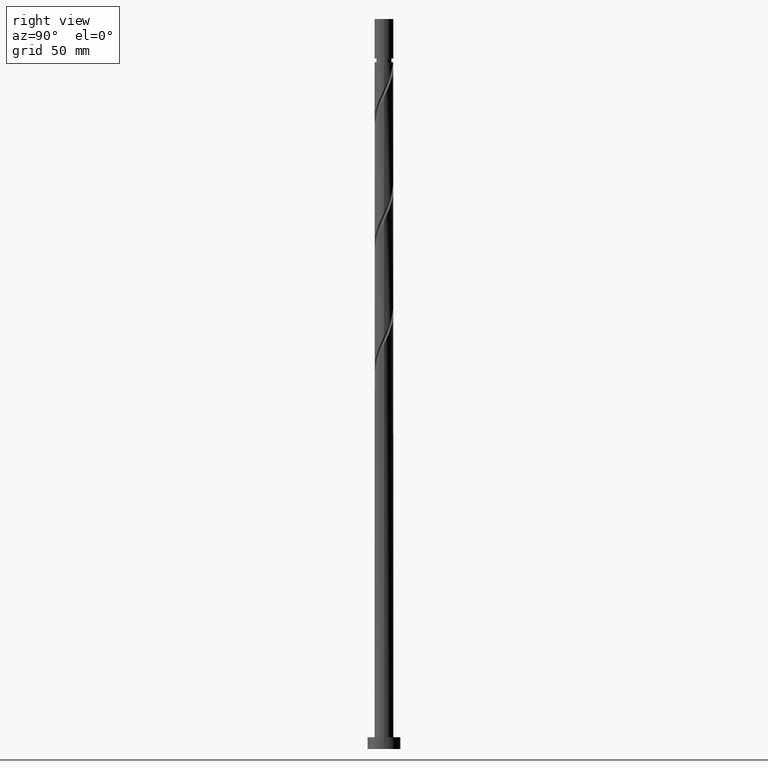
[diagram: clean part render]
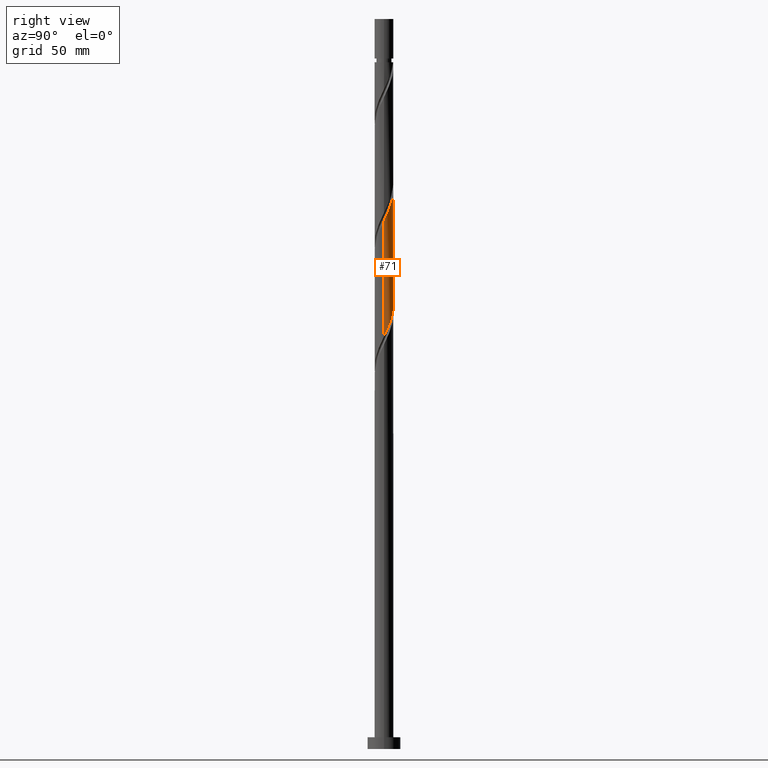
[diagram: same view with one face highlighted and labeled with its STEP entity id]
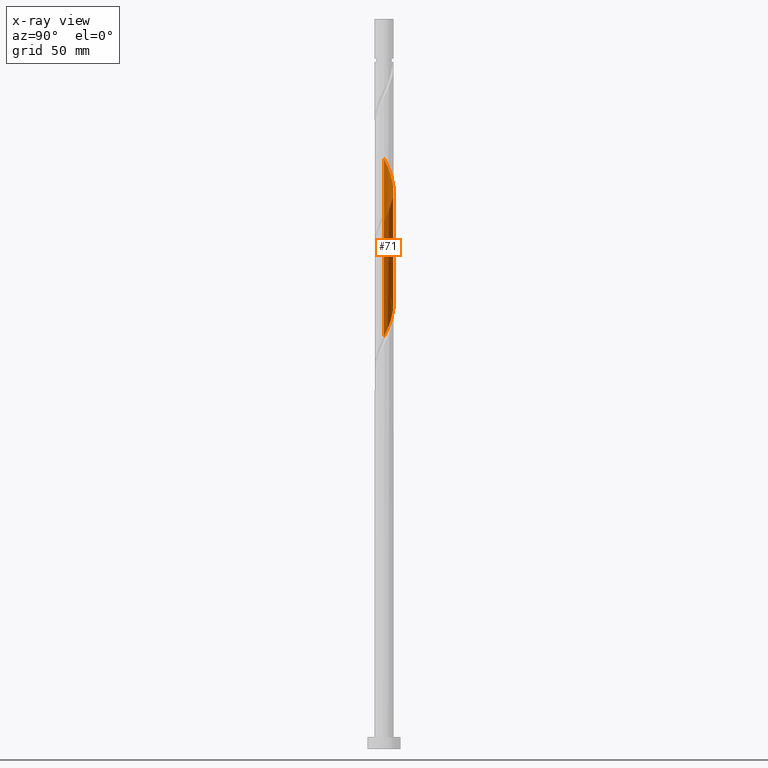
[diagram: x-ray of the same camera — body ghosted, the highlighted face saturated]
A machine part, right view. The second image highlights one B-rep face of the part: STEP entity #71.
The next image is the same camera in x-ray: the body ghosted, the highlighted face saturated — about 0% of this face is hidden behind the body in this view.
In plain terms, the highlighted cylindrical surface (edge-blend (fillet) strip) has radius 4 mm, axis along (-0, -0, -1).
Its self-contained STEP definition (entity closure, byte-faithful):
#15 = CARTESIAN_POINT ( 'NONE',  ( -3.355809096668281200, 2.222986362731496079, 245.7231802537389740 ) ) ;
#30 = VERTEX_POINT ( 'NONE', #113 ) ;
#40 = EDGE_CURVE ( 'NONE', #176, #1102, #1374, .T. ) ;
#71 = ADVANCED_FACE ( 'NONE', ( #294 ), #366, .T. ) ;
#113 = CARTESIAN_POINT ( 'NONE',  ( 4.000000000000005329, 6.119567143825683200E-16, 224.3611631758329281 ) ) ;
#129 = CARTESIAN_POINT ( 'NONE',  ( 3.999999999999999112, 0.04813158866555920096, 175.3105600198700813 ) ) ;
#136 = CARTESIAN_POINT ( 'NONE',  ( -3.066410025678347306, 2.568487795263850959, 244.7856802537390308 ) ) ;
#137 = CARTESIAN_POINT ( 'NONE',  ( 3.987997157791136171, 0.5468105079655612988, 176.3481802537390024 ) ) ;
#163 = CARTESIAN_POINT ( 'NONE',  ( -3.998841842776565958, 0.09624924134435045020, 250.4106802537389171 ) ) ;
#172 = CARTESIAN_POINT ( 'NONE',  ( 3.920000000000005258, 0.7959899496852977929, 226.0356802537390593 ) ) ;
#176 = VERTEX_POINT ( 'NONE', #955 ) ;
#256 = CARTESIAN_POINT ( 'NONE',  ( -4.000000000000005329, 4.955356809146651200E-15, 250.6111631758328144 ) ) ;
#267 = CARTESIAN_POINT ( 'NONE',  ( -3.919999999999999041, 0.7959899496852982370, 199.7856802537390024 ) ) ;
#275 = VECTOR ( 'NONE', #1395, 1000.000000000000000 ) ;
#283 = CARTESIAN_POINT ( 'NONE',  ( 0.9836620935111639596, 3.877165057846941654, 235.4106802537390024 ) ) ;
#292 = CARTESIAN_POINT ( 'NONE',  ( 2.222986362731496524, 3.355809096668280755, 232.5981802537390024 ) ) ;
#294 = FACE_OUTER_BOUND ( 'NONE', #1459, .T. ) ;
#366 = CYLINDRICAL_SURFACE ( 'NONE', #1519, 4.000000000000000000 ) ;
#389 =( BOUNDED_CURVE ( )  B_SPLINE_CURVE ( 2, ( #1324, #428, #172, #891, #1905, #1787, #1780, #883, #1048, #292, #576, #1178, #283, #1798, #1762, #1358, #1649, #1032, #922, #733, #1475, #1621, #136, #15, #900, #1332, #1914, #1205, #163, #1925, #1659 ),
 .UNSPECIFIED., .F., .T. ) 
 B_SPLINE_CURVE_WITH_KNOTS ( ( 3, 2, 2, 2, 2, 2, 2, 2, 2, 2, 2, 2, 2, 2, 2, 3 ),
 ( 0.4295303401299219170, 0.4375000000000000000, 0.4464285714285713969, 0.4553571428571429047, 0.4642857142857143016, 0.4732142857142856984, 0.4821428571428570953, 0.4910714285714286031, 0.5000000000000000000, 0.5089285714285713969, 0.5178571428571427937, 0.5267857142857143016, 0.5357142857142856984, 0.5446428571428572063, 0.5535714285714286031, 0.5545303401299219725 ),
 .UNSPECIFIED. ) 
 CURVE ( )  GEOMETRIC_REPRESENTATION_ITEM ( )  RATIONAL_B_SPLINE_CURVE ( ( 0.9079949616362097409, 0.9039886423360724566, 0.9090909090909393697, 0.9033747362666143532, 0.9090909090909393697, 0.9033747362666143532, 0.9090909090909393697, 0.9033747362666143532, 0.9090909090909393697, 0.9033747362666143532, 0.9090909090909393697, 0.9033747362666143532, 0.9090909090909393697, 0.9033747362666143532, 0.9090909090909393697, 0.9033747362666143532, 0.9090909090909393697, 0.9033747362666143532, 0.9090909090909393697, 0.9033747362666143532, 0.9090909090909393697, 0.9033747362666143532, 0.9090909090909393697, 0.9033747362666143532, 0.9090909090909393697, 0.9033747362666143532, 0.9090909090909393697, 0.9033747362666143532, 0.9090909090909393697, 0.9084770030214812664, 0.9079949616362096299 ) ) 
 REPRESENTATION_ITEM ( '' )  );
#415 = CARTESIAN_POINT ( 'NONE',  ( -0.9836620935111607400, 3.877165057846935436, 190.4106802537390024 ) ) ;
#421 = EDGE_CURVE ( 'NONE', #30, #906, #389, .T. ) ;
#427 = CARTESIAN_POINT ( 'NONE',  ( 3.999999999999998224, -2.634399026549366747E-15, 175.2101973316449914 ) ) ;
#428 = CARTESIAN_POINT ( 'NONE',  ( 4.000000000000007994, 0.4020151261036780665, 225.1994342547965289 ) ) ;
#439 = CARTESIAN_POINT ( 'NONE',  ( 3.766332957902735590, 1.420513679056758516, 178.2231802537389171 ) ) ;
#562 = CARTESIAN_POINT ( 'NONE',  ( -3.458872505219855675, 2.058961887652576817, 196.9731802537390024 ) ) ;
#571 = CARTESIAN_POINT ( 'NONE',  ( -0.09624924134434953427, 3.998841842776559741, 188.5356802537389740 ) ) ;
#576 = CARTESIAN_POINT ( 'NONE',  ( 1.821750020894129518, 3.561071027285510837, 233.5356802537389456 ) ) ;
#587 = CARTESIAN_POINT ( 'NONE',  ( 1.237667874093734133, 3.830313472238014771, 185.7231802537389740 ) ) ;
#655 = EDGE_CURVE ( 'NONE', #906, #176, #931, .T. ) ;
#707 = CARTESIAN_POINT ( 'NONE',  ( -2.568487795263846518, 3.066410025678343754, 194.1606802537389456 ) ) ;
#718 = CARTESIAN_POINT ( 'NONE',  ( -2.913989227796199621, 2.777010954688412081, 195.0981802537389456 ) ) ;
#733 = CARTESIAN_POINT ( 'NONE',  ( -2.058961887652579037, 3.458872505219861004, 241.9731802537390024 ) ) ;
#734 = CARTESIAN_POINT ( 'NONE',  ( 3.999999999999998224, -2.634399026549366747E-15, 175.2101973316449914 ) ) ;
#866 = CARTESIAN_POINT ( 'NONE',  ( -3.830313472238014771, 1.237667874093733245, 198.8481802537389456 ) ) ;
#875 = CARTESIAN_POINT ( 'NONE',  ( 3.066410025678344198, 2.568487795263845186, 181.0356802537389456 ) ) ;
#883 = CARTESIAN_POINT ( 'NONE',  ( 2.913989227796204950, 2.777010954688415634, 230.7231802537389456 ) ) ;
#884 = CARTESIAN_POINT ( 'NONE',  ( -3.999999999999998224, 0.4020151261036926105, 200.6219262526814191 ) ) ;
#885 = LINE ( 'NONE', #1174, #1794 ) ;
#891 = CARTESIAN_POINT ( 'NONE',  ( 3.830313472238021433, 1.237667874093733911, 226.9731802537388887 ) ) ;
#900 = CARTESIAN_POINT ( 'NONE',  ( -3.561071027285510837, 1.821750020894129074, 246.6606802537390593 ) ) ;
#906 = VERTEX_POINT ( 'NONE', #256 ) ;
#922 = CARTESIAN_POINT ( 'NONE',  ( -1.648314880873156918, 3.644592988728940774, 241.0356802537389740 ) ) ;
#931 = LINE ( 'NONE', #1226, #275 ) ;
#955 = CARTESIAN_POINT ( 'NONE',  ( -3.999999999999999112, 1.334364152824438586E-14, 201.4601973316449630 ) ) ;
#1025 = CARTESIAN_POINT ( 'NONE',  ( 3.877165057846936769, 0.9836620935111599628, 177.2856802537389456 ) ) ;
#1032 = CARTESIAN_POINT ( 'NONE',  ( -1.237667874093734799, 3.830313472238021433, 240.0981802537390024 ) ) ;
#1048 = CARTESIAN_POINT ( 'NONE',  ( 2.568487795263851847, 3.066410025678347306, 231.6606802537389740 ) ) ;
#1102 = VERTEX_POINT ( 'NONE', #427 ) ;
#1173 = CARTESIAN_POINT ( 'NONE',  ( 0.7959899496852991252, 3.919999999999999041, 186.6606802537389740 ) ) ;
#1174 = CARTESIAN_POINT ( 'NONE',  ( 4.000000000000000000, 4.898587196589412829E-16, 310.0000000000000000 ) ) ;
#1178 = CARTESIAN_POINT ( 'NONE',  ( 1.420513679056762957, 3.766332957902740475, 234.4731802537389456 ) ) ;
#1190 = CARTESIAN_POINT ( 'NONE',  ( -2.222986362731492527, 3.355809096668277203, 193.2231802537389740 ) ) ;
#1205 = CARTESIAN_POINT ( 'NONE',  ( -3.987997157791141500, 0.5468105079655638523, 249.4731802537390024 ) ) ;
#1226 = CARTESIAN_POINT ( 'NONE',  ( -4.000000000000000000, 0.000000000000000000, 310.0000000000000000 ) ) ;
#1317 = CARTESIAN_POINT ( 'NONE',  ( -1.420513679056759626, 3.766332957902735590, 191.3481802537389740 ) ) ;
#1324 = CARTESIAN_POINT ( 'NONE',  ( 4.000000000000005329, 6.119567143825683200E-16, 224.3611631758329281 ) ) ;
#1325 = CARTESIAN_POINT ( 'NONE',  ( 3.355809096668277203, 2.222986362731491639, 180.0981802537389171 ) ) ;
#1332 = CARTESIAN_POINT ( 'NONE',  ( -3.766332957902740475, 1.420513679056762291, 247.5981802537389740 ) ) ;
#1333 = CARTESIAN_POINT ( 'NONE',  ( 0.3543120252768630074, 4.009686527761982866, 187.5981802537389456 ) ) ;
#1358 = CARTESIAN_POINT ( 'NONE',  ( -0.3543120252768621192, 4.009686527761989971, 238.2231802537388887 ) ) ;
#1361 = ORIENTED_EDGE ( 'NONE', *, *, #421, .F. ) ;
#1374 =( BOUNDED_CURVE ( )  B_SPLINE_CURVE ( 2, ( #1622, #884, #267, #866, #1632, #562, #1607, #718, #707, #1190, #1749, #1317, #415, #1898, #571, #1333, #1173, #587, #1756, #1915, #1774, #1763, #875, #1325, #1476, #439, #1025, #137, #1614, #129, #734 ),
 .UNSPECIFIED., .F., .T. ) 
 B_SPLINE_CURVE_WITH_KNOTS ( ( 3, 2, 2, 2, 2, 2, 2, 2, 2, 2, 2, 2, 2, 2, 2, 3 ),
 ( 0.6795303401299221946, 0.6875000000000000000, 0.6964285714285713969, 0.7053571428571429047, 0.7142857142857143016, 0.7232142857142856984, 0.7321428571428570953, 0.7410714285714286031, 0.7500000000000000000, 0.7589285714285713969, 0.7678571428571429047, 0.7767857142857143016, 0.7857142857142856984, 0.7946428571428570953, 0.8035714285714286031, 0.8045303401299220836 ),
 .UNSPECIFIED. ) 
 CURVE ( )  GEOMETRIC_REPRESENTATION_ITEM ( )  RATIONAL_B_SPLINE_CURVE ( ( 0.9079949616362034126, 0.9039886423360666834, 0.9090909090909334855, 0.9033747362666083580, 0.9090909090909334855, 0.9033747362666083580, 0.9090909090909334855, 0.9033747362666083580, 0.9090909090909334855, 0.9033747362666083580, 0.9090909090909334855, 0.9033747362666083580, 0.9090909090909334855, 0.9033747362666083580, 0.9090909090909334855, 0.9033747362666083580, 0.9090909090909334855, 0.9033747362666083580, 0.9090909090909334855, 0.9033747362666083580, 0.9090909090909334855, 0.9033747362666083580, 0.9090909090909334855, 0.9033747362666083580, 0.9090909090909334855, 0.9033747362666083580, 0.9090909090909334855, 0.9033747362666083580, 0.9090909090909334855, 0.9084770030214752712, 0.9079949616362036346 ) ) 
 REPRESENTATION_ITEM ( '' )  );
#1375 = ORIENTED_EDGE ( 'NONE', *, *, #40, .F. ) ;
#1378 = DIRECTION ( 'NONE',  ( -1.000000000000000000, 0.000000000000000000, 0.000000000000000000 ) ) ;
#1395 = DIRECTION ( 'NONE',  ( -0.000000000000000000, -0.000000000000000000, -1.000000000000000000 ) ) ;
#1438 = ORIENTED_EDGE ( 'NONE', *, *, #1849, .T. ) ;
#1459 = EDGE_LOOP ( 'NONE', ( #1361, #1438, #1375, #1675 ) ) ;
#1475 = CARTESIAN_POINT ( 'NONE',  ( -2.417986421170497557, 3.186430866508032977, 242.9106802537390024 ) ) ;
#1476 = CARTESIAN_POINT ( 'NONE',  ( 3.561071027285505952, 1.821750020894124855, 179.1606802537389740 ) ) ;
#1519 = AXIS2_PLACEMENT_3D ( 'NONE', #1691, #1841, #1378 ) ;
#1607 = CARTESIAN_POINT ( 'NONE',  ( -3.186430866508028092, 2.417986421170494449, 196.0356802537389740 ) ) ;
#1614 = CARTESIAN_POINT ( 'NONE',  ( 3.998841842776559741, 0.09624924134434886813, 175.4106802537389456 ) ) ;
#1621 = CARTESIAN_POINT ( 'NONE',  ( -2.777010954688416522, 2.913989227796204950, 243.8481802537389456 ) ) ;
#1622 = CARTESIAN_POINT ( 'NONE',  ( -3.999999999999999112, 1.334364152824438586E-14, 201.4601973316449630 ) ) ;
#1632 = CARTESIAN_POINT ( 'NONE',  ( -3.644592988728935445, 1.648314880873155142, 197.9106802537389740 ) ) ;
#1649 = CARTESIAN_POINT ( 'NONE',  ( -0.7959899496852976819, 3.920000000000005258, 239.1606802537390024 ) ) ;
#1659 = CARTESIAN_POINT ( 'NONE',  ( -4.000000000000005329, 4.955356809146651200E-15, 250.6111631758328144 ) ) ;
#1675 = ORIENTED_EDGE ( 'NONE', *, *, #655, .F. ) ;
#1691 = CARTESIAN_POINT ( 'NONE',  ( 0.000000000000000000, 0.000000000000000000, 310.0000000000000000 ) ) ;
#1749 = CARTESIAN_POINT ( 'NONE',  ( -1.821750020894125521, 3.561071027285505952, 192.2856802537390024 ) ) ;
#1756 = CARTESIAN_POINT ( 'NONE',  ( 1.648314880873155586, 3.644592988728935001, 184.7856802537389456 ) ) ;
#1757 = DIRECTION ( 'NONE',  ( -0.000000000000000000, -0.000000000000000000, -1.000000000000000000 ) ) ;
#1762 = CARTESIAN_POINT ( 'NONE',  ( 0.09624924134435140777, 3.998841842776565958, 237.2856802537389740 ) ) ;
#1763 = CARTESIAN_POINT ( 'NONE',  ( 2.777010954688412969, 2.913989227796199177, 181.9731802537389456 ) ) ;
#1774 = CARTESIAN_POINT ( 'NONE',  ( 2.417986421170494893, 3.186430866508027648, 182.9106802537388887 ) ) ;
#1780 = CARTESIAN_POINT ( 'NONE',  ( 3.186430866508034754, 2.417986421170496669, 229.7856802537389456 ) ) ;
#1787 = CARTESIAN_POINT ( 'NONE',  ( 3.458872505219861448, 2.058961887652578149, 228.8481802537389740 ) ) ;
#1794 = VECTOR ( 'NONE', #1757, 1000.000000000000000 ) ;
#1798 = CARTESIAN_POINT ( 'NONE',  ( 0.5468105079655646295, 3.987997157791141500, 236.3481802537390024 ) ) ;
#1841 = DIRECTION ( 'NONE',  ( -0.000000000000000000, -0.000000000000000000, -1.000000000000000000 ) ) ;
#1849 = EDGE_CURVE ( 'NONE', #30, #1102, #885, .T. ) ;
#1898 = CARTESIAN_POINT ( 'NONE',  ( -0.5468105079655622980, 3.987997157791136171, 189.4731802537390308 ) ) ;
#1905 = CARTESIAN_POINT ( 'NONE',  ( 3.644592988728941219, 1.648314880873156474, 227.9106802537390308 ) ) ;
#1914 = CARTESIAN_POINT ( 'NONE',  ( -3.877165057846941654, 0.9836620935111629604, 248.5356802537390308 ) ) ;
#1915 = CARTESIAN_POINT ( 'NONE',  ( 2.058961887652577261, 3.458872505219854787, 183.8481802537389740 ) ) ;
#1925 = CARTESIAN_POINT ( 'NONE',  ( -4.000000000000004441, 0.04813158866556626475, 250.5108004876077246 ) ) ;